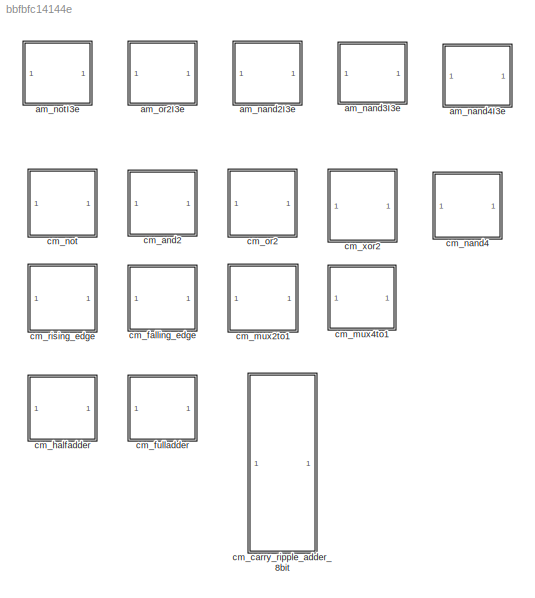
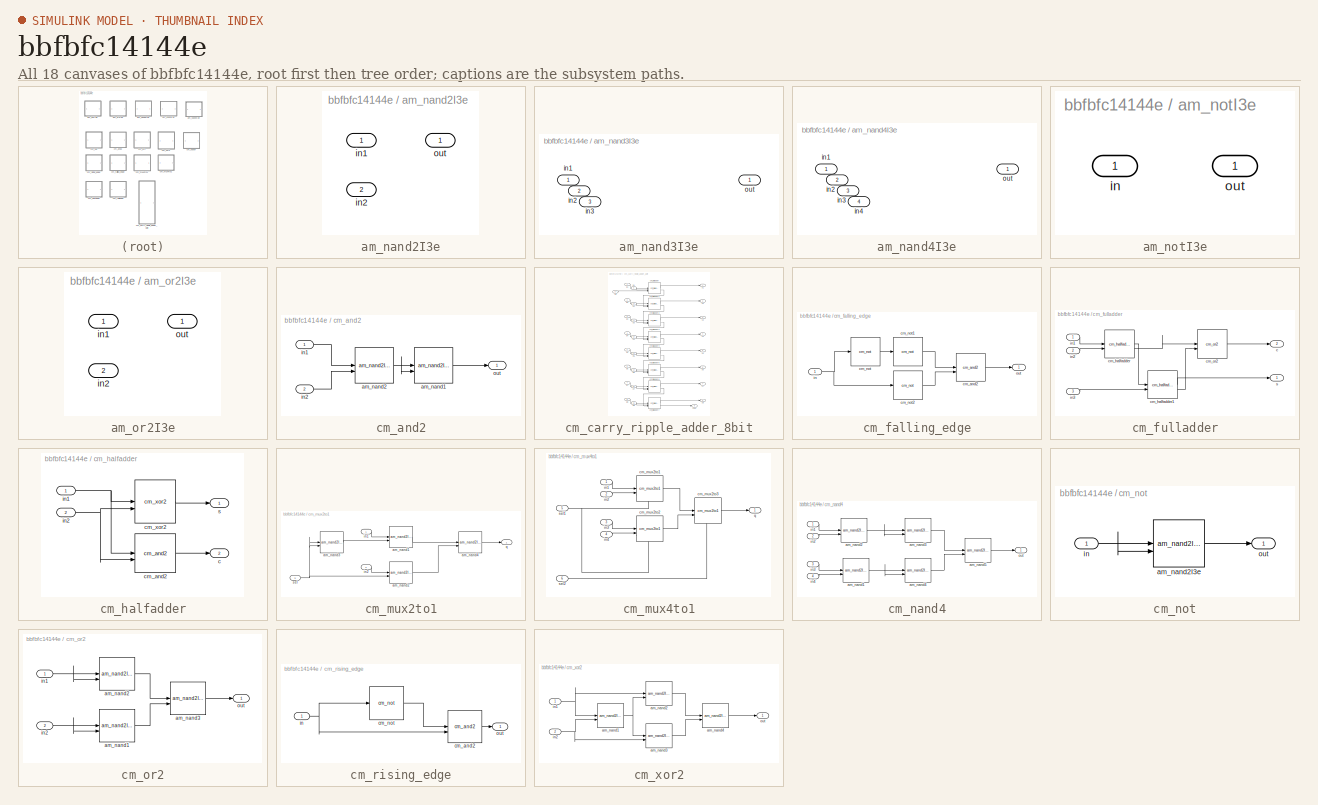
[diagram: thumbnail index - all 18 canvases of the model, root first then tree order]
MODEL slx_bbfbfc14144e
KIND library
CONFIG AbsTol = auto
CONFIG EnableMultiTasking = off
CONFIG FixedStep = auto
CONFIG MaxStep = auto
CONFIG MinStep = auto
CONFIG RelTol = 1e-3
CONFIG SampleTimeConstraint = Unconstrained
CONFIG SolverName = VariableStepAuto
CONFIG StartTime = 0.0
CONFIG StopTime = 10.0
BLOCK [SubSystem] am_nand2I3e
  ShowPortLabels = none
  TreatAsAtomicUnit = on
BLOCK [Inport] am_nand2I3e/in1
BLOCK [Inport] am_nand2I3e/in2
  Port = 2
BLOCK [Outport] am_nand2I3e/out
BLOCK [SubSystem] am_nand3I3e
BLOCK [Inport] am_nand3I3e/in1
BLOCK [Inport] am_nand3I3e/in2
  Port = 2
BLOCK [Inport] am_nand3I3e/in3
  Port = 3
BLOCK [Outport] am_nand3I3e/out
BLOCK [SubSystem] am_nand4I3e
BLOCK [Inport] am_nand4I3e/in1
BLOCK [Inport] am_nand4I3e/in2
  Port = 2
BLOCK [Inport] am_nand4I3e/in3
  Port = 3
BLOCK [Inport] am_nand4I3e/in4
  Port = 4
BLOCK [Outport] am_nand4I3e/out
BLOCK [SubSystem] am_notI3e
  ShowPortLabels = none
  TreatAsAtomicUnit = on
BLOCK [Inport] am_notI3e/in
BLOCK [Outport] am_notI3e/out
BLOCK [SubSystem] am_or2I3e
  ShowPortLabels = none
  TreatAsAtomicUnit = on
BLOCK [Inport] am_or2I3e/in1
BLOCK [Inport] am_or2I3e/in2
  Port = 2
BLOCK [Outport] am_or2I3e/out
BLOCK [SubSystem] cm_and2
BLOCK [Reference] cm_and2/am_nand1  REF=$bdroot/am_nand2I3e
  SourceBlock = $bdroot/am_nand2I3e
  SourceType = Nand2
BLOCK [Reference] cm_and2/am_nand2  REF=$bdroot/am_nand2I3e
  SourceBlock = $bdroot/am_nand2I3e
  SourceType = Nand2
BLOCK [Inport] cm_and2/in1
BLOCK [Inport] cm_and2/in2
  Port = 2
BLOCK [Outport] cm_and2/out
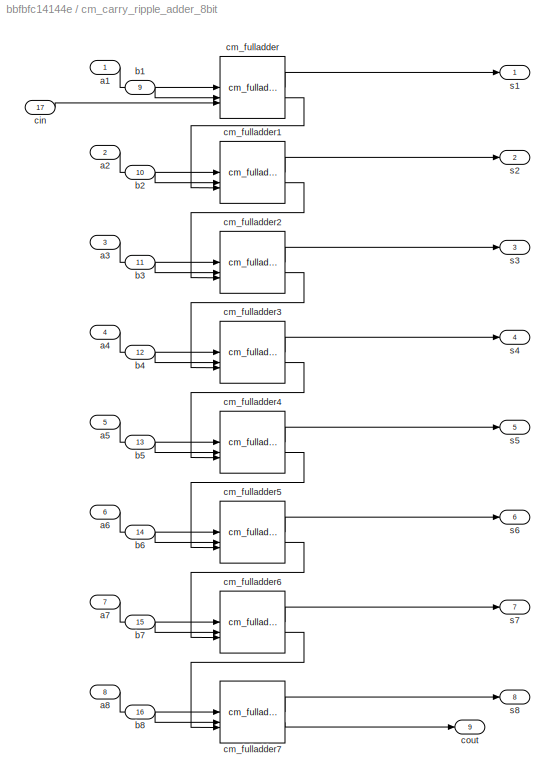
BLOCK [SubSystem] cm_carry_ripple_adder_8bit
BLOCK [Inport] cm_carry_ripple_adder_8bit/a1
BLOCK [Inport] cm_carry_ripple_adder_8bit/a2
  Port = 2
BLOCK [Inport] cm_carry_ripple_adder_8bit/a3
  Port = 3
BLOCK [Inport] cm_carry_ripple_adder_8bit/a4
  Port = 4
BLOCK [Inport] cm_carry_ripple_adder_8bit/a5
  Port = 5
BLOCK [Inport] cm_carry_ripple_adder_8bit/a6
  Port = 6
BLOCK [Inport] cm_carry_ripple_adder_8bit/a7
  Port = 7
BLOCK [Inport] cm_carry_ripple_adder_8bit/a8
  Port = 8
BLOCK [Inport] cm_carry_ripple_adder_8bit/b1
  Port = 9
BLOCK [Inport] cm_carry_ripple_adder_8bit/b2
  Port = 10
BLOCK [Inport] cm_carry_ripple_adder_8bit/b3
  Port = 11
BLOCK [Inport] cm_carry_ripple_adder_8bit/b4
  Port = 12
BLOCK [Inport] cm_carry_ripple_adder_8bit/b5
  Port = 13
BLOCK [Inport] cm_carry_ripple_adder_8bit/b6
  Port = 14
BLOCK [Inport] cm_carry_ripple_adder_8bit/b7
  Port = 15
BLOCK [Inport] cm_carry_ripple_adder_8bit/b8
  Port = 16
BLOCK [Inport] cm_carry_ripple_adder_8bit/cin
  Port = 17
BLOCK [Reference] cm_carry_ripple_adder_8bit/cm_fulladder  REF=$bdroot/cm_fulladder
  SourceBlock = $bdroot/cm_fulladder
BLOCK [Reference] cm_carry_ripple_adder_8bit/cm_fulladder1  REF=$bdroot/cm_fulladder
  SourceBlock = $bdroot/cm_fulladder
BLOCK [Reference] cm_carry_ripple_adder_8bit/cm_fulladder2  REF=$bdroot/cm_fulladder
  SourceBlock = $bdroot/cm_fulladder
BLOCK [Reference] cm_carry_ripple_adder_8bit/cm_fulladder3  REF=$bdroot/cm_fulladder
  SourceBlock = $bdroot/cm_fulladder
BLOCK [Reference] cm_carry_ripple_adder_8bit/cm_fulladder4  REF=$bdroot/cm_fulladder
  SourceBlock = $bdroot/cm_fulladder
BLOCK [Reference] cm_carry_ripple_adder_8bit/cm_fulladder5  REF=$bdroot/cm_fulladder
  SourceBlock = $bdroot/cm_fulladder
BLOCK [Reference] cm_carry_ripple_adder_8bit/cm_fulladder6  REF=$bdroot/cm_fulladder
  SourceBlock = $bdroot/cm_fulladder
BLOCK [Reference] cm_carry_ripple_adder_8bit/cm_fulladder7  REF=$bdroot/cm_fulladder
  SourceBlock = $bdroot/cm_fulladder
BLOCK [Outport] cm_carry_ripple_adder_8bit/cout
  Port = 9
BLOCK [Outport] cm_carry_ripple_adder_8bit/s1
BLOCK [Outport] cm_carry_ripple_adder_8bit/s2
  Port = 2
BLOCK [Outport] cm_carry_ripple_adder_8bit/s3
  Port = 3
BLOCK [Outport] cm_carry_ripple_adder_8bit/s4
  Port = 4
BLOCK [Outport] cm_carry_ripple_adder_8bit/s5
  Port = 5
BLOCK [Outport] cm_carry_ripple_adder_8bit/s6
  Port = 6
BLOCK [Outport] cm_carry_ripple_adder_8bit/s7
  Port = 7
BLOCK [Outport] cm_carry_ripple_adder_8bit/s8
  Port = 8
BLOCK [SubSystem] cm_falling_edge
BLOCK [Reference] cm_falling_edge/cm_and2  REF=$bdroot/cm_and2
  SourceBlock = $bdroot/cm_and2
BLOCK [Reference] cm_falling_edge/cm_not  REF=$bdroot/cm_not
  SourceBlock = $bdroot/cm_not
BLOCK [Reference] cm_falling_edge/cm_not1  REF=$bdroot/cm_not
  SourceBlock = $bdroot/cm_not
BLOCK [Reference] cm_falling_edge/cm_not2  REF=$bdroot/cm_not
  SourceBlock = $bdroot/cm_not
BLOCK [Inport] cm_falling_edge/in
BLOCK [Outport] cm_falling_edge/out
BLOCK [SubSystem] cm_fulladder
BLOCK [Outport] cm_fulladder/c
  Port = 2
BLOCK [Reference] cm_fulladder/cm_halfadder  REF=$bdroot/cm_halfadder
  SourceBlock = $bdroot/cm_halfadder
BLOCK [Reference] cm_fulladder/cm_halfadder1  REF=$bdroot/cm_halfadder
  SourceBlock = $bdroot/cm_halfadder
BLOCK [Reference] cm_fulladder/cm_or2  REF=$bdroot/cm_or2
  SourceBlock = $bdroot/cm_or2
BLOCK [Inport] cm_fulladder/in1
BLOCK [Inport] cm_fulladder/in2
  Port = 2
BLOCK [Inport] cm_fulladder/in3
  Port = 3
BLOCK [Outport] cm_fulladder/s
BLOCK [SubSystem] cm_halfadder
BLOCK [Outport] cm_halfadder/c
  Port = 2
BLOCK [Reference] cm_halfadder/cm_and2  REF=$bdroot/cm_and2
  SourceBlock = $bdroot/cm_and2
BLOCK [Reference] cm_halfadder/cm_xor2  REF=$bdroot/cm_xor2
  SourceBlock = $bdroot/cm_xor2
BLOCK [Inport] cm_halfadder/in1
BLOCK [Inport] cm_halfadder/in2
  Port = 2
BLOCK [Outport] cm_halfadder/s
BLOCK [SubSystem] cm_mux2to1
  PortSchema = {"entries":[{"content":{"sides":[{"content":{"connectorIds":["In1","In2"]},"type":"ConnectorPlacement.EquallySpacedRectSide","uuid":"34731d48-8e15-42ba-bd4b-aed28d23aea0"},{"content":{"connectorIds":["Out1"],"side":"RIGHT"},"type":"ConnectorPlacement.EquallySpacedRectSide","uuid":"a041c752-ab26-4ca5-92b4-ec2914ea875f"},{"content":{"side":"TOP"},"type":"ConnectorPlacement.EquallySpacedRectSide","uu...<+377ch>
BLOCK [Reference] cm_mux2to1/am_nand1  REF=$bdroot/am_nand2I3e
  SourceBlock = $bdroot/am_nand2I3e
  SourceType = Nand2
BLOCK [Reference] cm_mux2to1/am_nand2  REF=$bdroot/am_nand2I3e
  SourceBlock = $bdroot/am_nand2I3e
  SourceType = Nand2
BLOCK [Reference] cm_mux2to1/am_nand3  REF=$bdroot/am_nand2I3e
  SourceBlock = $bdroot/am_nand2I3e
  SourceType = Nand2
BLOCK [Reference] cm_mux2to1/am_nand4  REF=$bdroot/am_nand2I3e
  SourceBlock = $bdroot/am_nand2I3e
  SourceType = Nand2
BLOCK [Inport] cm_mux2to1/in1
BLOCK [Inport] cm_mux2to1/in2
  Port = 2
BLOCK [Outport] cm_mux2to1/q
BLOCK [Inport] cm_mux2to1/sel
  Port = 3
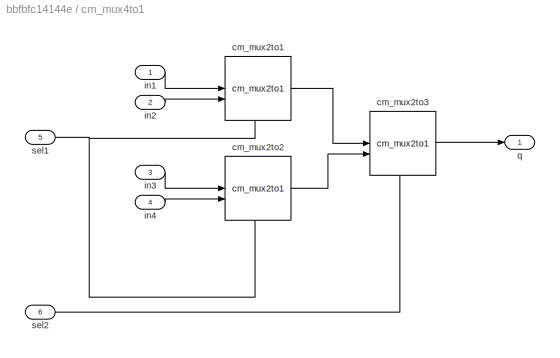
BLOCK [SubSystem] cm_mux4to1
  PortSchema = {"entries":[{"content":{"sides":[{"content":{"connectorIds":["In1","In2","In3","In4"]},"type":"ConnectorPlacement.EquallySpacedRectSide","uuid":"fc26a088-fa47-4166-98e4-908e63baa449"},{"content":{"connectorIds":["Out1"],"side":"RIGHT"},"type":"ConnectorPlacement.EquallySpacedRectSide","uuid":"3a4c553a-cbb7-43df-85ec-7cd09b4558b4"},{"content":{"side":"TOP"},"type":"ConnectorPlacement.EquallySpacedR...<+395ch>
BLOCK [Reference] cm_mux4to1/cm_mux2to1  REF=$bdroot/cm_mux2to1
  SourceBlock = $bdroot/cm_mux2to1
BLOCK [Reference] cm_mux4to1/cm_mux2to2  REF=$bdroot/cm_mux2to1
  SourceBlock = $bdroot/cm_mux2to1
BLOCK [Reference] cm_mux4to1/cm_mux2to3  REF=$bdroot/cm_mux2to1
  SourceBlock = $bdroot/cm_mux2to1
BLOCK [Inport] cm_mux4to1/in1
BLOCK [Inport] cm_mux4to1/in2
  Port = 2
BLOCK [Inport] cm_mux4to1/in3
  Port = 3
BLOCK [Inport] cm_mux4to1/in4
  Port = 4
BLOCK [Outport] cm_mux4to1/q
BLOCK [Inport] cm_mux4to1/sel1
  Port = 5
BLOCK [Inport] cm_mux4to1/sel2
  Port = 6
BLOCK [SubSystem] cm_nand4
BLOCK [Reference] cm_nand4/am_nand1  REF=$bdroot/am_nand2I3e
  SourceBlock = $bdroot/am_nand2I3e
  SourceType = Nand2
BLOCK [Reference] cm_nand4/am_nand2  REF=$bdroot/am_nand2I3e
  SourceBlock = $bdroot/am_nand2I3e
  SourceType = Nand2
BLOCK [Reference] cm_nand4/am_nand3  REF=$bdroot/am_nand2I3e
  SourceBlock = $bdroot/am_nand2I3e
  SourceType = Nand2
BLOCK [Reference] cm_nand4/am_nand4  REF=$bdroot/am_nand2I3e
  SourceBlock = $bdroot/am_nand2I3e
  SourceType = Nand2
BLOCK [Reference] cm_nand4/am_nand5  REF=$bdroot/am_nand2I3e
  SourceBlock = $bdroot/am_nand2I3e
  SourceType = Nand2
BLOCK [Inport] cm_nand4/in1
BLOCK [Inport] cm_nand4/in2
  Port = 2
BLOCK [Inport] cm_nand4/in3
  Port = 3
BLOCK [Inport] cm_nand4/in4
  Port = 4
BLOCK [Outport] cm_nand4/out
BLOCK [SubSystem] cm_not
BLOCK [Reference] cm_not/am_nand2I3e  REF=$bdroot/am_nand2I3e
  SourceBlock = $bdroot/am_nand2I3e
  SourceType = Nand2
BLOCK [Inport] cm_not/in
BLOCK [Outport] cm_not/out
BLOCK [SubSystem] cm_or2
BLOCK [Reference] cm_or2/am_nand1  REF=$bdroot/am_nand2I3e
  SourceBlock = $bdroot/am_nand2I3e
  SourceType = Nand2
BLOCK [Reference] cm_or2/am_nand2  REF=$bdroot/am_nand2I3e
  SourceBlock = $bdroot/am_nand2I3e
  SourceType = Nand2
BLOCK [Reference] cm_or2/am_nand3  REF=$bdroot/am_nand2I3e
  SourceBlock = $bdroot/am_nand2I3e
  SourceType = Nand2
BLOCK [Inport] cm_or2/in1
BLOCK [Inport] cm_or2/in2
  Port = 2
BLOCK [Outport] cm_or2/out
BLOCK [SubSystem] cm_rising_edge
BLOCK [Reference] cm_rising_edge/cm_and2  REF=$bdroot/cm_and2
  SourceBlock = $bdroot/cm_and2
BLOCK [Reference] cm_rising_edge/cm_not  REF=$bdroot/cm_not
  SourceBlock = $bdroot/cm_not
BLOCK [Inport] cm_rising_edge/in
BLOCK [Outport] cm_rising_edge/out
BLOCK [SubSystem] cm_xor2
BLOCK [Reference] cm_xor2/am_nand1  REF=$bdroot/am_nand2I3e
  SourceBlock = $bdroot/am_nand2I3e
  SourceType = Nand2
BLOCK [Reference] cm_xor2/am_nand2  REF=$bdroot/am_nand2I3e
  SourceBlock = $bdroot/am_nand2I3e
  SourceType = Nand2
BLOCK [Reference] cm_xor2/am_nand3  REF=$bdroot/am_nand2I3e
  SourceBlock = $bdroot/am_nand2I3e
  SourceType = Nand2
BLOCK [Reference] cm_xor2/am_nand4  REF=$bdroot/am_nand2I3e
  SourceBlock = $bdroot/am_nand2I3e
  SourceType = Nand2
BLOCK [Inport] cm_xor2/in1
BLOCK [Inport] cm_xor2/in2
  Port = 2
BLOCK [Outport] cm_xor2/out
LINE cm_and2/am_nand1:1 -> cm_and2/out:1
NET cm_and2/am_nand2:1 -> cm_and2/am_nand1:1, cm_and2/am_nand1:2
LINE cm_and2/in1:1 -> cm_and2/am_nand2:1
LINE cm_and2/in2:1 -> cm_and2/am_nand2:2
LINE cm_carry_ripple_adder_8bit/a1:1 -> cm_carry_ripple_adder_8bit/cm_fulladder:1
LINE cm_carry_ripple_adder_8bit/a2:1 -> cm_carry_ripple_adder_8bit/cm_fulladder1:1
LINE cm_carry_ripple_adder_8bit/a3:1 -> cm_carry_ripple_adder_8bit/cm_fulladder2:1
LINE cm_carry_ripple_adder_8bit/a4:1 -> cm_carry_ripple_adder_8bit/cm_fulladder3:1
LINE cm_carry_ripple_adder_8bit/a5:1 -> cm_carry_ripple_adder_8bit/cm_fulladder4:1
LINE cm_carry_ripple_adder_8bit/a6:1 -> cm_carry_ripple_adder_8bit/cm_fulladder5:1
LINE cm_carry_ripple_adder_8bit/a7:1 -> cm_carry_ripple_adder_8bit/cm_fulladder6:1
LINE cm_carry_ripple_adder_8bit/a8:1 -> cm_carry_ripple_adder_8bit/cm_fulladder7:1
LINE cm_carry_ripple_adder_8bit/b1:1 -> cm_carry_ripple_adder_8bit/cm_fulladder:2
LINE cm_carry_ripple_adder_8bit/b2:1 -> cm_carry_ripple_adder_8bit/cm_fulladder1:2
LINE cm_carry_ripple_adder_8bit/b3:1 -> cm_carry_ripple_adder_8bit/cm_fulladder2:2
LINE cm_carry_ripple_adder_8bit/b4:1 -> cm_carry_ripple_adder_8bit/cm_fulladder3:2
LINE cm_carry_ripple_adder_8bit/b5:1 -> cm_carry_ripple_adder_8bit/cm_fulladder4:2
LINE cm_carry_ripple_adder_8bit/b6:1 -> cm_carry_ripple_adder_8bit/cm_fulladder5:2
LINE cm_carry_ripple_adder_8bit/b7:1 -> cm_carry_ripple_adder_8bit/cm_fulladder6:2
LINE cm_carry_ripple_adder_8bit/b8:1 -> cm_carry_ripple_adder_8bit/cm_fulladder7:2
LINE cm_carry_ripple_adder_8bit/cin:1 -> cm_carry_ripple_adder_8bit/cm_fulladder:3
LINE cm_carry_ripple_adder_8bit/cm_fulladder1:1 -> cm_carry_ripple_adder_8bit/s2:1
LINE cm_carry_ripple_adder_8bit/cm_fulladder1:2 -> cm_carry_ripple_adder_8bit/cm_fulladder2:3
LINE cm_carry_ripple_adder_8bit/cm_fulladder2:1 -> cm_carry_ripple_adder_8bit/s3:1
LINE cm_carry_ripple_adder_8bit/cm_fulladder2:2 -> cm_carry_ripple_adder_8bit/cm_fulladder3:3
LINE cm_carry_ripple_adder_8bit/cm_fulladder3:1 -> cm_carry_ripple_adder_8bit/s4:1
LINE cm_carry_ripple_adder_8bit/cm_fulladder3:2 -> cm_carry_ripple_adder_8bit/cm_fulladder4:3
LINE cm_carry_ripple_adder_8bit/cm_fulladder4:1 -> cm_carry_ripple_adder_8bit/s5:1
LINE cm_carry_ripple_adder_8bit/cm_fulladder4:2 -> cm_carry_ripple_adder_8bit/cm_fulladder5:3
LINE cm_carry_ripple_adder_8bit/cm_fulladder5:1 -> cm_carry_ripple_adder_8bit/s6:1
LINE cm_carry_ripple_adder_8bit/cm_fulladder5:2 -> cm_carry_ripple_adder_8bit/cm_fulladder6:3
LINE cm_carry_ripple_adder_8bit/cm_fulladder6:1 -> cm_carry_ripple_adder_8bit/s7:1
LINE cm_carry_ripple_adder_8bit/cm_fulladder6:2 -> cm_carry_ripple_adder_8bit/cm_fulladder7:3
LINE cm_carry_ripple_adder_8bit/cm_fulladder7:1 -> cm_carry_ripple_adder_8bit/s8:1
LINE cm_carry_ripple_adder_8bit/cm_fulladder7:2 -> cm_carry_ripple_adder_8bit/cout:1
LINE cm_carry_ripple_adder_8bit/cm_fulladder:1 -> cm_carry_ripple_adder_8bit/s1:1
LINE cm_carry_ripple_adder_8bit/cm_fulladder:2 -> cm_carry_ripple_adder_8bit/cm_fulladder1:3
LINE cm_falling_edge/cm_and2:1 -> cm_falling_edge/out:1
LINE cm_falling_edge/cm_not1:1 -> cm_falling_edge/cm_and2:1
LINE cm_falling_edge/cm_not2:1 -> cm_falling_edge/cm_and2:2
LINE cm_falling_edge/cm_not:1 -> cm_falling_edge/cm_not1:1
NET cm_falling_edge/in:1 -> cm_falling_edge/cm_not2:1, cm_falling_edge/cm_not:1
LINE cm_fulladder/cm_halfadder1:1 -> cm_fulladder/s:1
LINE cm_fulladder/cm_halfadder1:2 -> cm_fulladder/cm_or2:2
LINE cm_fulladder/cm_halfadder:1 -> cm_fulladder/cm_halfadder1:1
LINE cm_fulladder/cm_halfadder:2 -> cm_fulladder/cm_or2:1
LINE cm_fulladder/cm_or2:1 -> cm_fulladder/c:1
LINE cm_fulladder/in1:1 -> cm_fulladder/cm_halfadder:1
LINE cm_fulladder/in2:1 -> cm_fulladder/cm_halfadder:2
LINE cm_fulladder/in3:1 -> cm_fulladder/cm_halfadder1:2
LINE cm_halfadder/cm_and2:1 -> cm_halfadder/c:1
LINE cm_halfadder/cm_xor2:1 -> cm_halfadder/s:1
NET cm_halfadder/in1:1 -> cm_halfadder/cm_and2:1, cm_halfadder/cm_xor2:1
NET cm_halfadder/in2:1 -> cm_halfadder/cm_and2:2, cm_halfadder/cm_xor2:2
LINE cm_mux2to1/am_nand1:1 -> cm_mux2to1/am_nand4:1
LINE cm_mux2to1/am_nand2:1 -> cm_mux2to1/am_nand4:2
LINE cm_mux2to1/am_nand3:1 -> cm_mux2to1/am_nand1:2
LINE cm_mux2to1/am_nand4:1 -> cm_mux2to1/q:1
LINE cm_mux2to1/in1:1 -> cm_mux2to1/am_nand1:1
LINE cm_mux2to1/in2:1 -> cm_mux2to1/am_nand2:1
NET cm_mux2to1/sel:1 -> cm_mux2to1/am_nand2:2, cm_mux2to1/am_nand3:1, cm_mux2to1/am_nand3:2
LINE cm_mux4to1/cm_mux2to1:1 -> cm_mux4to1/cm_mux2to3:1
LINE cm_mux4to1/cm_mux2to2:1 -> cm_mux4to1/cm_mux2to3:2
LINE cm_mux4to1/cm_mux2to3:1 -> cm_mux4to1/q:1
LINE cm_mux4to1/in1:1 -> cm_mux4to1/cm_mux2to1:1
LINE cm_mux4to1/in2:1 -> cm_mux4to1/cm_mux2to1:2
LINE cm_mux4to1/in3:1 -> cm_mux4to1/cm_mux2to2:1
LINE cm_mux4to1/in4:1 -> cm_mux4to1/cm_mux2to2:2
NET cm_mux4to1/sel1:1 -> cm_mux4to1/cm_mux2to1:3, cm_mux4to1/cm_mux2to2:3
LINE cm_mux4to1/sel2:1 -> cm_mux4to1/cm_mux2to3:3
NET cm_nand4/am_nand1:1 -> cm_nand4/am_nand4:1, cm_nand4/am_nand4:2
NET cm_nand4/am_nand2:1 -> cm_nand4/am_nand3:1, cm_nand4/am_nand3:2
LINE cm_nand4/am_nand3:1 -> cm_nand4/am_nand5:1
LINE cm_nand4/am_nand4:1 -> cm_nand4/am_nand5:2
LINE cm_nand4/am_nand5:1 -> cm_nand4/out:1
LINE cm_nand4/in1:1 -> cm_nand4/am_nand2:1
LINE cm_nand4/in2:1 -> cm_nand4/am_nand2:2
LINE cm_nand4/in3:1 -> cm_nand4/am_nand1:1
LINE cm_nand4/in4:1 -> cm_nand4/am_nand1:2
LINE cm_not/am_nand2I3e:1 -> cm_not/out:1
NET cm_not/in:1 -> cm_not/am_nand2I3e:1, cm_not/am_nand2I3e:2
LINE cm_or2/am_nand1:1 -> cm_or2/am_nand3:2
LINE cm_or2/am_nand2:1 -> cm_or2/am_nand3:1
LINE cm_or2/am_nand3:1 -> cm_or2/out:1
NET cm_or2/in1:1 -> cm_or2/am_nand2:1, cm_or2/am_nand2:2
NET cm_or2/in2:1 -> cm_or2/am_nand1:1, cm_or2/am_nand1:2
LINE cm_rising_edge/cm_and2:1 -> cm_rising_edge/out:1
LINE cm_rising_edge/cm_not:1 -> cm_rising_edge/cm_and2:1
NET cm_rising_edge/in:1 -> cm_rising_edge/cm_and2:2, cm_rising_edge/cm_not:1
NET cm_xor2/am_nand1:1 -> cm_xor2/am_nand2:2, cm_xor2/am_nand3:1
LINE cm_xor2/am_nand2:1 -> cm_xor2/am_nand4:1
LINE cm_xor2/am_nand3:1 -> cm_xor2/am_nand4:2
LINE cm_xor2/am_nand4:1 -> cm_xor2/out:1
NET cm_xor2/in1:1 -> cm_xor2/am_nand1:1, cm_xor2/am_nand2:1
NET cm_xor2/in2:1 -> cm_xor2/am_nand1:2, cm_xor2/am_nand3:2
note: NET lines group one-source signal fan-out (src -> all destinations, sorted); 1:1 wires keep LINE
